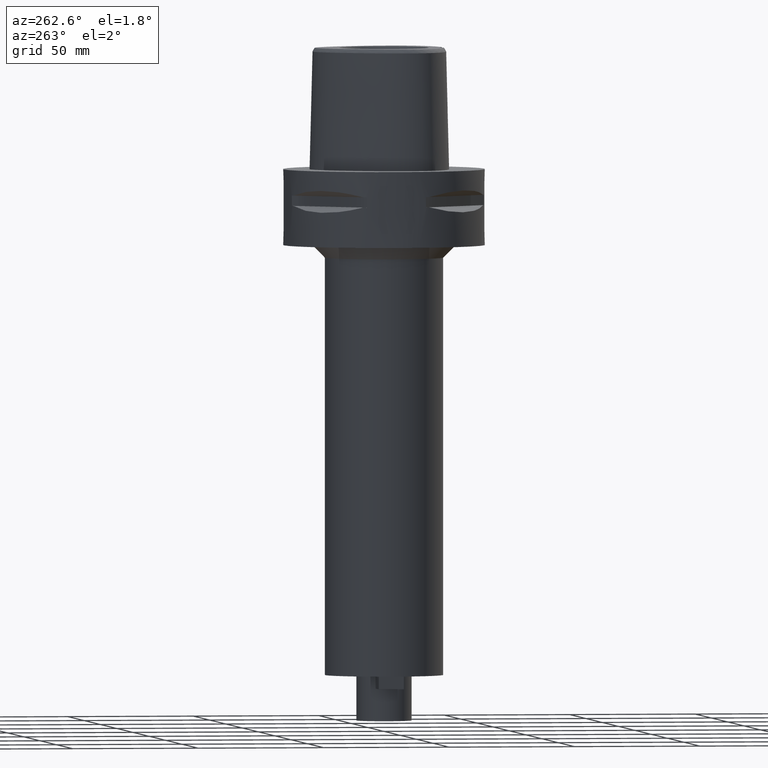
[diagram: clean part render]
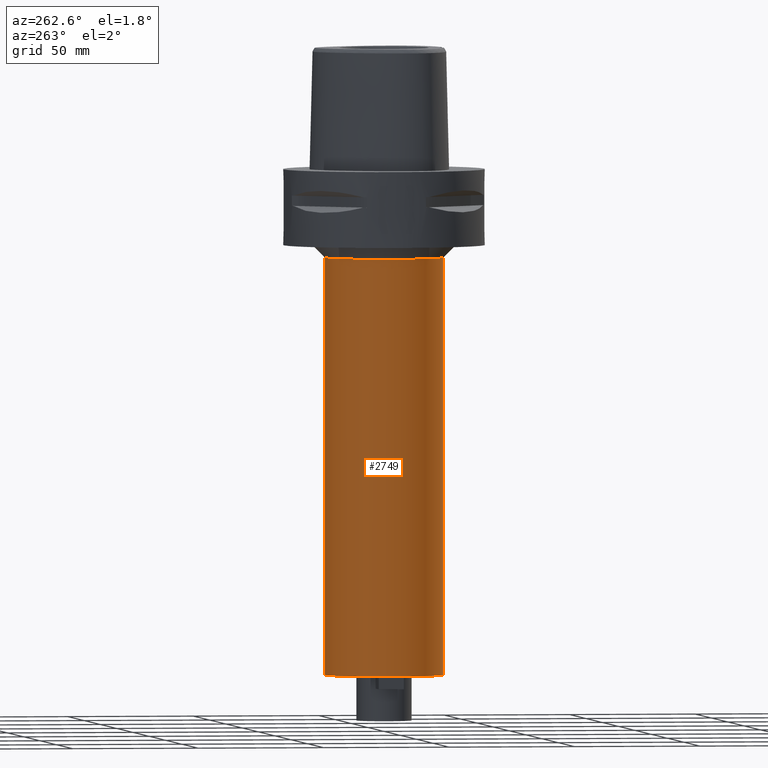
[diagram: same view with one face highlighted and labeled with its STEP entity id]
A machine part, auxiliary view. The second image highlights one B-rep face of the part: STEP entity #2749.
In plain terms, the highlighted cylindrical surface (partial cylindrical patch) has radius 23.5 mm, axis along (0, 0, -1).
Its self-contained STEP definition (entity closure, byte-faithful):
#516=CARTESIAN_POINT('',(0.E0,0.E0,-3.5E1));
#517=DIRECTION('',(0.E0,0.E0,-1.E0));
#518=DIRECTION('',(0.E0,-1.E0,0.E0));
#519=AXIS2_PLACEMENT_3D('',#516,#517,#518);
#539=DIRECTION('',(0.E0,0.E0,-1.E0));
#540=VECTOR('',#539,1.65E2);
#541=CARTESIAN_POINT('',(0.E0,2.35E1,-3.5E1));
#542=LINE('',#541,#540);
#546=DIRECTION('',(0.E0,0.E0,-1.E0));
#547=VECTOR('',#546,1.65E2);
#548=CARTESIAN_POINT('',(0.E0,-2.35E1,-3.5E1));
#549=LINE('',#548,#547);
#561=CARTESIAN_POINT('',(0.E0,1.358133300254E-14,-2.E2));
#562=DIRECTION('',(0.E0,0.E0,1.E0));
#563=DIRECTION('',(0.E0,1.E0,0.E0));
#564=AXIS2_PLACEMENT_3D('',#561,#562,#563);
#1712=CARTESIAN_POINT('',(0.E0,2.35E1,-3.5E1));
#1713=VERTEX_POINT('',#1712);
#1714=CARTESIAN_POINT('',(0.E0,-2.35E1,-3.5E1));
#1715=VERTEX_POINT('',#1714);
#1716=CARTESIAN_POINT('',(0.E0,2.35E1,-2.E2));
#1717=VERTEX_POINT('',#1716);
#1718=CARTESIAN_POINT('',(0.E0,-2.35E1,-2.E2));
#1719=VERTEX_POINT('',#1718);
#2737=CARTESIAN_POINT('',(0.E0,1.358133300254E-14,1.09E1));
#2738=DIRECTION('',(0.E0,0.E0,-1.E0));
#2739=DIRECTION('',(0.E0,-1.E0,0.E0));
#2740=AXIS2_PLACEMENT_3D('',#2737,#2738,#2739);
#2741=CYLINDRICAL_SURFACE('',#2740,2.35E1);
#2742=ORIENTED_EDGE('',*,*,#2727,.F.);
#2743=ORIENTED_EDGE('',*,*,#2704,.F.);
#2744=ORIENTED_EDGE('',*,*,#2731,.T.);
#2746=ORIENTED_EDGE('',*,*,#2745,.F.);
#2747=EDGE_LOOP('',(#2742,#2743,#2744,#2746));
#2748=FACE_OUTER_BOUND('',#2747,.F.);
#520=CIRCLE('',#519,2.35E1);
#565=CIRCLE('',#564,2.35E1);
#2704=EDGE_CURVE('',#1715,#1713,#520,.T.);
#2727=EDGE_CURVE('',#1713,#1717,#542,.T.);
#2731=EDGE_CURVE('',#1715,#1719,#549,.T.);
#2745=EDGE_CURVE('',#1717,#1719,#565,.T.);
#2749=ADVANCED_FACE('',(#2748),#2741,.T.);